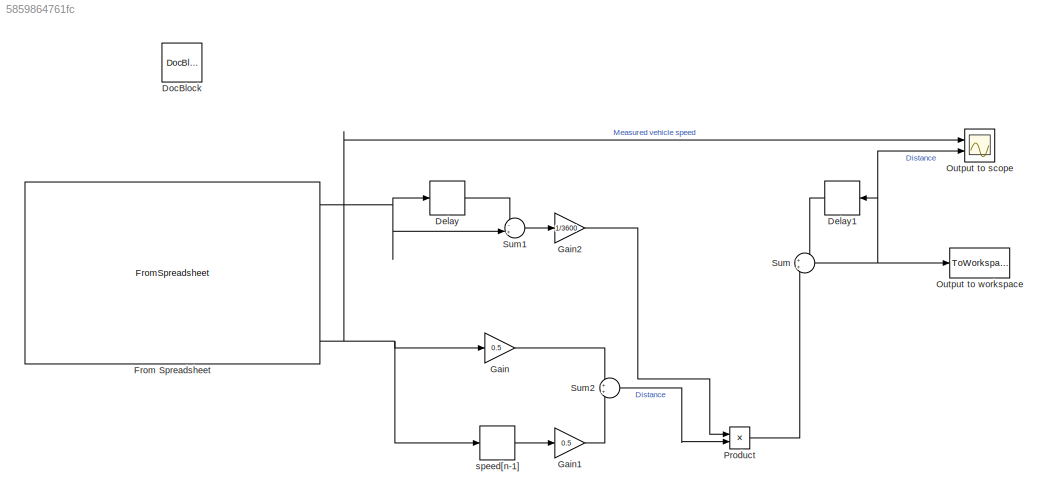
MODEL slx_5859864761fc
KIND model
CONFIG AbsTol = auto
CONFIG EnableMultiTasking = off
CONFIG FixedStep = 1
CONFIG MaxStep = auto
CONFIG MinStep = auto
CONFIG RelTol = 1e-3
CONFIG SampleTimeConstraint = Unconstrained
CONFIG Solver = FixedStepAuto
CONFIG SolverName = FixedStepAuto
CONFIG StartTime = 0.0
CONFIG StopTime = count
BLOCK [Delay] Delay
  DelayLength = 1
  InitialCondition = 0
  InputPortMap = u0
  Ports = [1, 1]
BLOCK [Delay] Delay1
  DelayLength = 1
  InitialCondition = 0
  InputPortMap = u0
  Ports = [1, 1]
BLOCK [Reference] DocBlock  REF=simulink/Model-Wide
Utilities/DocBlock
  Ports = []
  SourceBlock = simulink/Model-Wide\nUtilities/DocBlock
  SourceProductBaseCode = SL
  SourceProductName = Simulink
  SourceType = DocBlock
  UserDataPersistent = on
BLOCK [FromSpreadsheet] From Spreadsheet
  FileName = datalog4.xlsx
  Ports = [0, 7]
  SheetName = datalog4
BLOCK [Gain] Gain
  Gain = 0.5
  OutDataTypeStr = Inherit: Inherit via internal rule
  ParamDataTypeStr = Inherit: Inherit via internal rule
  SaturateOnIntegerOverflow = off
BLOCK [Gain] Gain1
  Gain = 0.5
  OutDataTypeStr = Inherit: Inherit via internal rule
  ParamDataTypeStr = Inherit: Inherit via internal rule
  SaturateOnIntegerOverflow = off
BLOCK [Gain] Gain2
  Gain = 1/3600
  OutDataTypeStr = Inherit: Inherit via internal rule
  ParamDataTypeStr = Inherit: Inherit via internal rule
  SaturateOnIntegerOverflow = off
BLOCK [Scope] Output to scope
  Floating = off
  NumInputPorts = 2
  Ports = [2]
  ScopeSpecificationString = Simulink.scopes.TimeScopeBlockCfg('CurrentConfiguration', extmgr.ConfigurationSet(extmgr.Configuration('Core','General UI',true),extmgr.Configuration('Core','Source UI',true),extmgr.Configuration('Sources','WiredSimulink',true),extmgr.Configuration('Visuals','Time Domain',true,'SerializedDisplays',{struct('MinYLimReal','-10.75','MaxYLimReal','96.75','YLabelReal','','MinYLimMag','0.00000','MaxYLimM...<+2003ch>
BLOCK [ToWorkspace] Output to workspace
  FixptAsFi = on
  MaxDataPoints = inf
  Ports = [1]
  SampleTime = -1
  Save2DSignal = 2-D array (concatenate along first dimension)
  VariableName = distance
BLOCK [Product] Product
  InputSameDT = off
  OutDataTypeStr = double
  Ports = [2, 1]
  RndMeth = Nearest
  SaturateOnIntegerOverflow = off
BLOCK [Sum] Sum
  AccumDataTypeStr = double
  IconShape = round
  InputSameDT = off
  OutDataTypeStr = double
  Ports = [2, 1]
  RndMeth = Nearest
  SaturateOnIntegerOverflow = off
BLOCK [Sum] Sum1
  AccumDataTypeStr = double
  IconShape = round
  InputSameDT = off
  Inputs = -+
  OutDataTypeStr = double
  Ports = [2, 1]
  RndMeth = Nearest
  SaturateOnIntegerOverflow = off
BLOCK [Sum] Sum2
  AccumDataTypeStr = double
  IconShape = round
  InputSameDT = off
  OutDataTypeStr = double
  Ports = [2, 1]
  RndMeth = Nearest
  SaturateOnIntegerOverflow = off
BLOCK [Delay] speed[n-1]
  DelayLength = 1
  InitialCondition = 0
  InputPortMap = u0
  Ports = [1, 1]
LINE Delay1:1 -> Sum:1
LINE Delay:1 -> Sum1:1
NET From Spreadsheet:1 -> Delay:1, Sum1:2
NET From Spreadsheet:7 -> Gain:1, Output to scope:1, speed[n-1]:1
LINE Gain1:1 -> Sum2:2
LINE Gain2:1 -> Product:1
LINE Gain:1 -> Sum2:1
LINE Product:1 -> Sum:2
LINE Sum1:1 -> Gain2:1
LINE Sum2:1 -> Product:2
NET Sum:1 -> Delay1:1, Output to scope:2, Output to workspace:1
LINE speed[n-1]:1 -> Gain1:1
note: NET lines group one-source signal fan-out (src -> all destinations, sorted); 1:1 wires keep LINE
